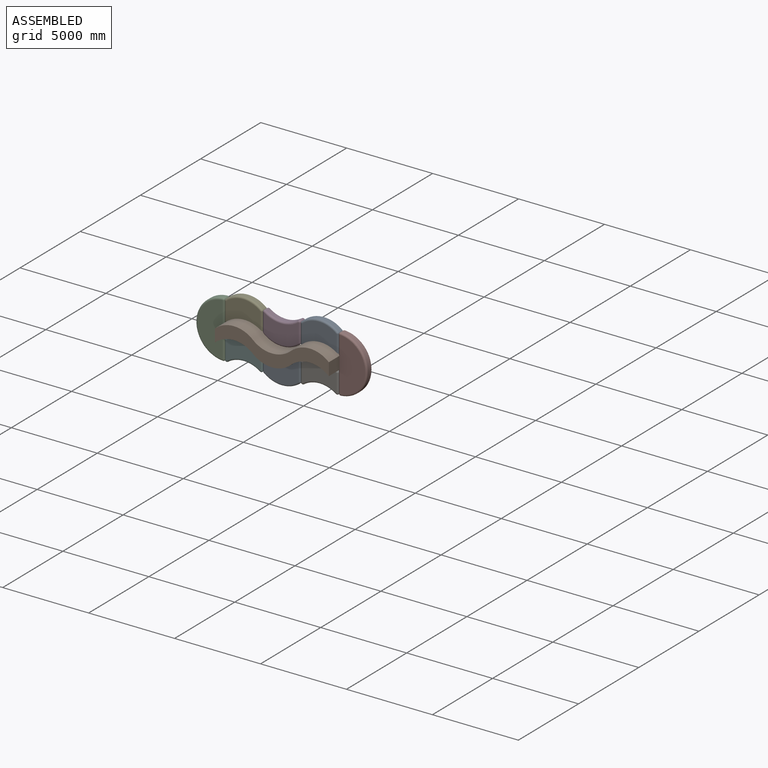
[diagram: assembled view]
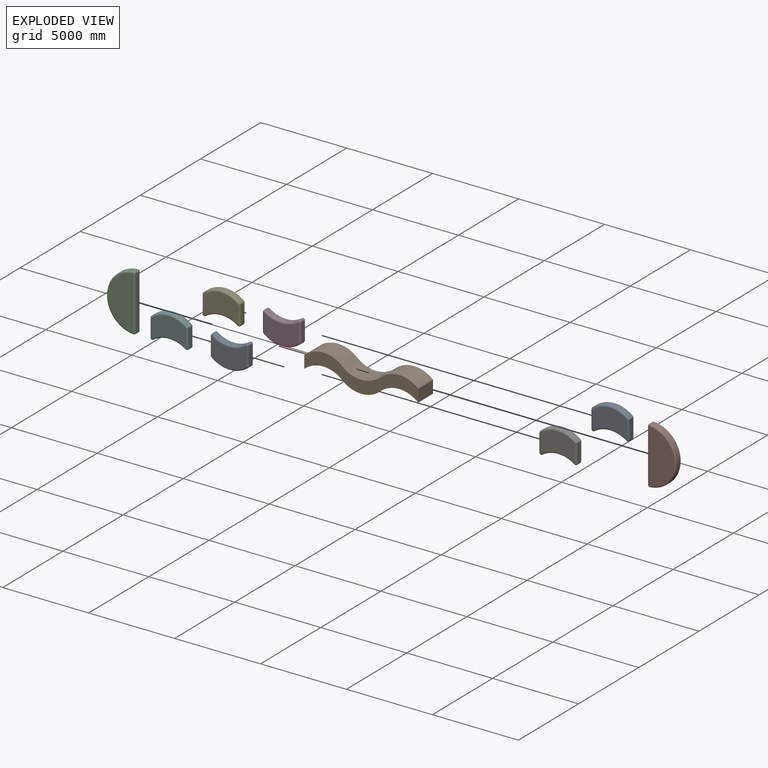
[diagram: exploded view]
GUIDED TOUR — MATED ASSEMBLY (Onshape document 57f68752e66cea10b9c33d71, AutoMate assembly 57f68752e66cea10b9c33d71_37ee06eb201e53cffd0e787d_c62291b0ad501cf054df715e_default)

This assembly has 9 components, labeled P0..P8 below (a component is one placed occurrence of a part; the same part can appear more than once), held together by 8 mates. A mate is a constraint between two components; its type names the relative motion it leaves free:
  FASTENED — locks the two components together rigidly (no relative motion).
Axis/direction vectors are unit vectors and 'through' points are millimeter coordinates, both in the assembly's world frame.

MATES
  1. FASTENED "Fastened 5": P4 <-> P3, direction (1.000, 0.000, 0.000) through (-3078.81, 1188.93, 929.05) mm
  2. FASTENED "Fastened 3": P3 <-> P8, direction (1.000, 0.000, 0.000) through (-869.01, 1188.93, 396.81) mm
  3. FASTENED "Fastened 2": P6 <-> P7, direction (1.000, 0.000, 0.000) through (1340.79, 1188.93, -1656.30) mm
  4. FASTENED "Fastened 8": P1 <-> P0, direction (0.000, 1.000, 0.000) through (-800.17, 1315.93, -381.51) mm
  5. FASTENED "Fastened 4": P0 <-> P6, direction (1.000, 0.000, 0.000) through (-869.01, 1188.93, -591.82) mm
  6. FASTENED "Fastened 1": P8 <-> P7, direction (1.000, 0.000, 0.000) through (1340.79, 1188.93, 1461.29) mm
  7. FASTENED "Fastened 6": P5 <-> P0, direction (1.000, 0.000, 0.000) through (-3078.81, 1188.93, -1124.06) mm
  8. FASTENED "Fastened 7": P2 <-> P4, direction (1.000, 0.000, 0.000) through (-5288.61, 1188.93, 1461.29) mm

ASSEMBLY ORDER
  1. P3 — the base component [order verified]
  2. P0 [order verified]
  3. P1 [order verified]
  4. P4 [order verified]
  5. P8 [order verified]
  6. P5 [order verified]
  7. P7 [order verified]
  8. P6 [order verified]
  9. P2 [order verified]
Order-tag legend:
  [order verified] — this step's position reverses a verified removal order: the component was checked to insert without passing through the ones already placed.

Of the 9 components, 7 carry the full construction recipe — the FeatureScript program that regenerates the part's solid from scratch; the rest are supplied as boundary geometry only.
Each toured component is shown spotlighted twice — in the assembled view, then in the exploded view, where a leader line traces a displaced component back to its assembled socket (saturated green if recipe-attached, orange if geometry-only; every other component desaturated gray) — followed by its recipe or geometry summary and the mates that hold it.
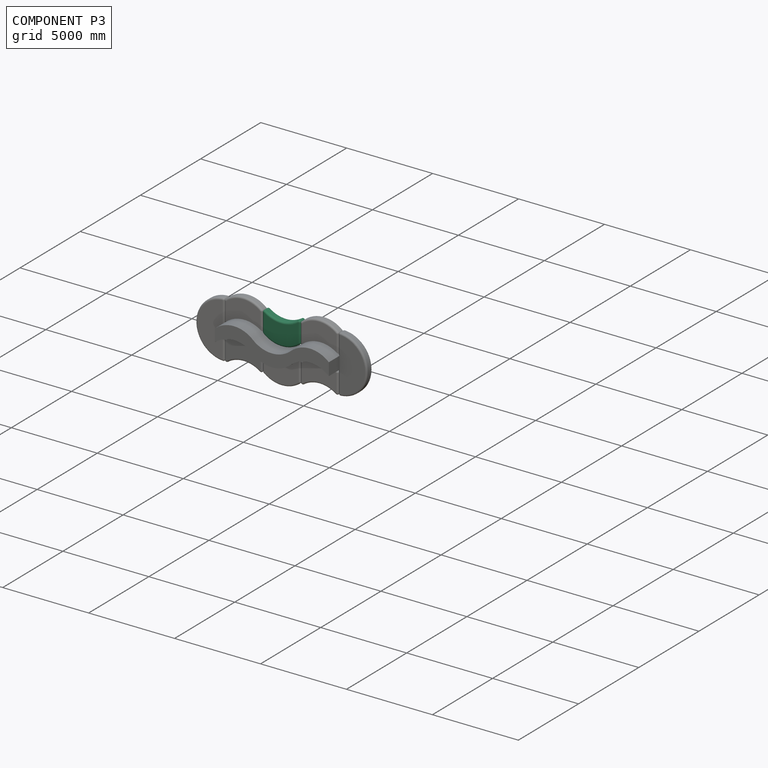
[diagram: component P3 — assembled]
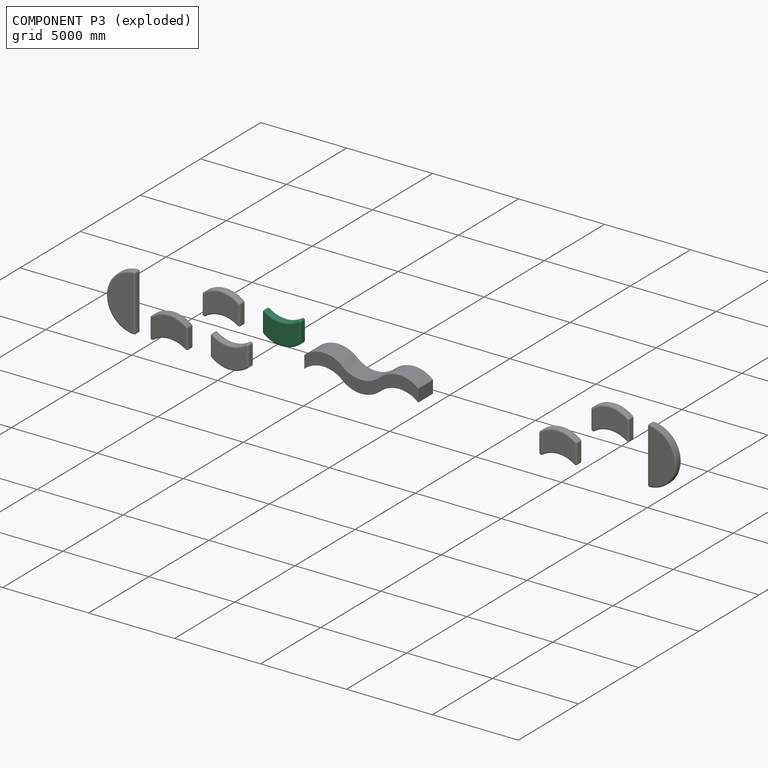
[diagram: component P3 — exploded]
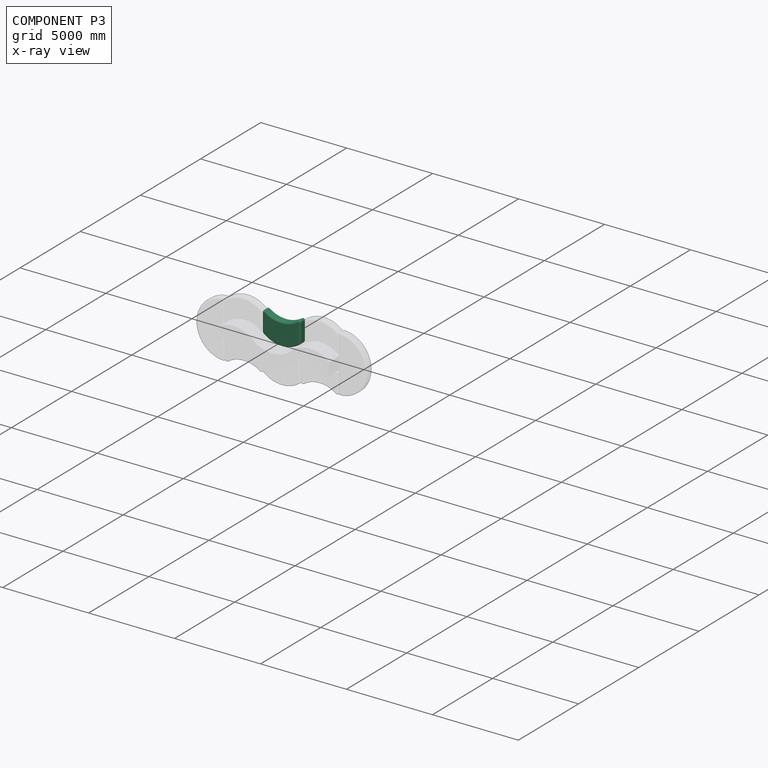
[diagram: component P3 — x-ray view]
COMPONENT P3 — same part as P0 (CADFS 00276042); its construction recipe is shown at P0.
Held by: FASTENED mate "Fastened 5" to P4; FASTENED mate "Fastened 3" to P8.
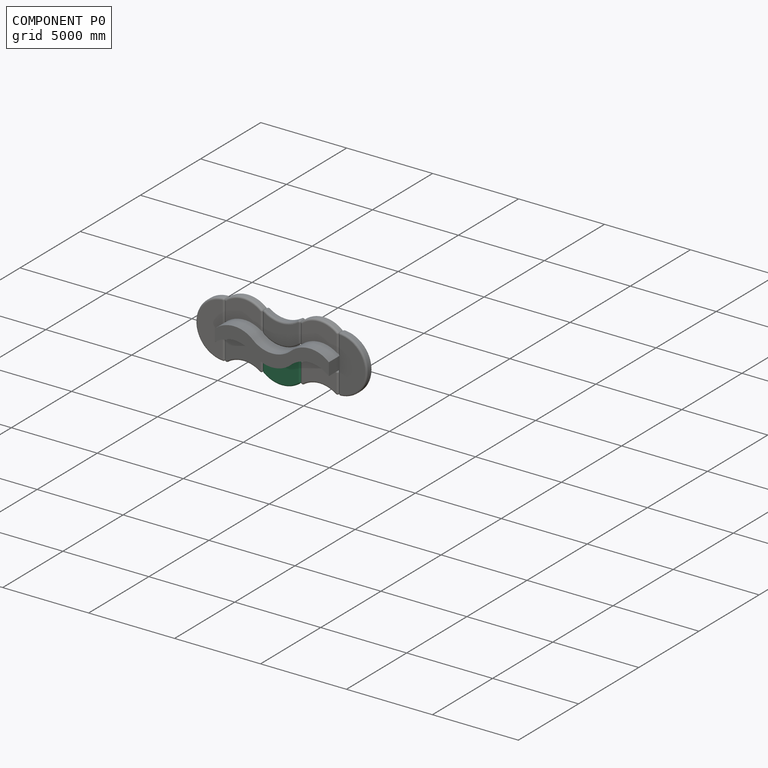
[diagram: component P0 — assembled]
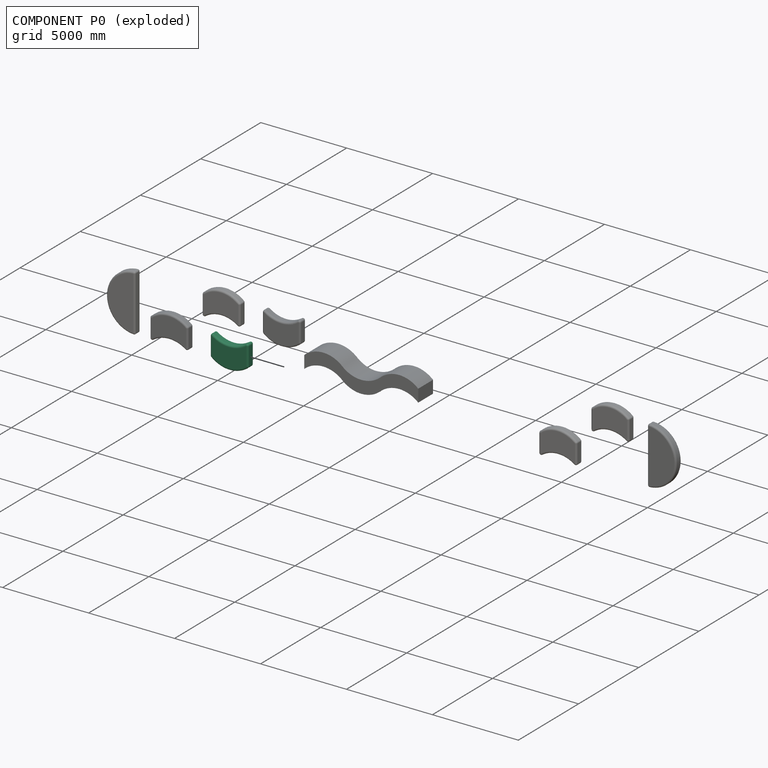
[diagram: component P0 — exploded]
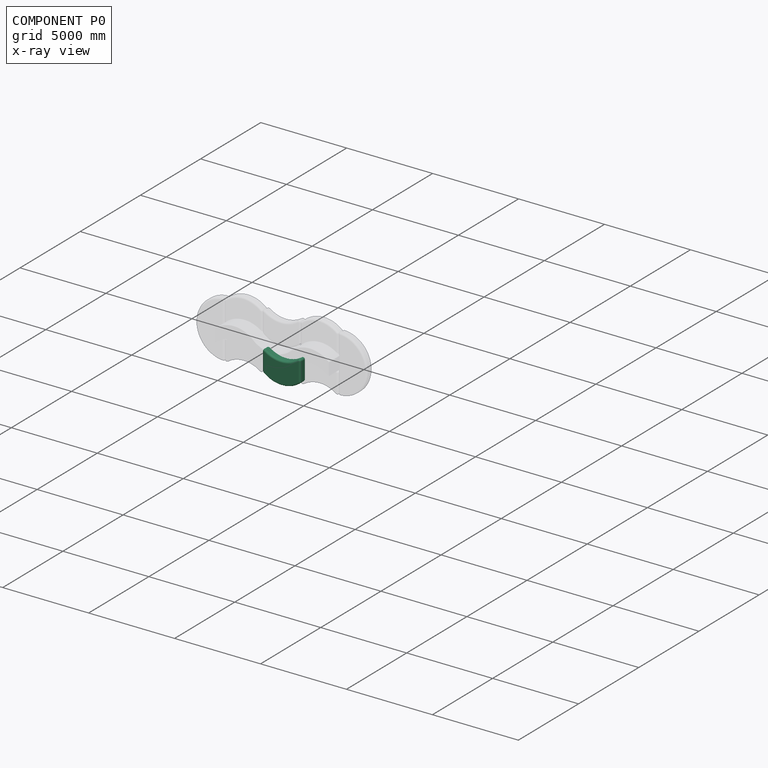
[diagram: component P0 — x-ray view]
COMPONENT P0 — recipe-attached (CADFS 00276042, mesh-verified: the recipe's output STEP matches this component's geometry to below the mesh-comparison resolution (tessellation chordal tolerance ~4.18 mm)).
Held by: FASTENED mate "Fastened 8" to P1; FASTENED mate "Fastened 4" to P6; FASTENED mate "Fastened 6" to P5.
Construction recipe (FeatureScript — the CAD program that rebuilds this solid; sketch coordinates are in the units given by the * unit suffixes, e.g. mm):

FeatureScript 1511;
import(path : "onshape/std/geometry.fs", version : "1511.0");
import(path : "onshape/std/common.fs", version : "1511.0");
const mm = millimeter;
const VERTEX = EntityType.VERTEX;
const EDGE = EntityType.EDGE;
const FACE = EntityType.FACE;
const BODY = EntityType.BODY;
function v(x, y){return vector(x, y);}
function OD(order){return orderDisambiguation(order);}
function OSD(set){return originalSetDisambiguation(set);}
function TD(topology){return topologyDisambiguation(topology);}
function TDD(query){return trueDependencyDisambiguation(query);}
function sQuery(a, b, c) {return sketchEntityQuery(a, b, c);}

annotation { "Feature Type Name" : "Feature", "Feature Type Description" : "" }
export const myFeature = defineFeature(function(context is Context, id is Id, definition is map)
    precondition{}
    {
        {
            var Q0;
            Q0=qCreatedBy(makeId("Front.planeOp"),FACE);
            var sketch = newSketch(context, id + "F0", { "sketchPlane" : qUnion([Q0])});
            skLineSegment(sketch, "E0", {"start": v(0, 0) * mm, "end": v(1104.9, 0) * mm});
            skLineSegment(sketch, "E1", {"start": v(0, 0) * mm, "end": v(-1104.9, 0) * mm});
            skLineSegment(sketch, "E2", {"start": v(-1104.9, 0) * mm, "end": v(-1104.9, 1320.8) * mm});
            skLineSegment(sketch, "E3", {"start": v(1104.9, 0) * mm, "end": v(1104.9, 1320.8) * mm});
            skArc(sketch, "E4", {"start": v(1104.9, 1320.8) * mm, "mid": v(0, 1745.02) * mm, "end": v(-1104.9, 1320.8) * mm});
            skArc(sketch, "E5", {"start": v(1104.9, 0) * mm, "mid": v(0, 424.22) * mm, "end": v(-1104.9, 0) * mm});
            skSolve(sketch);
        }
        {
            var Q0;
            Q0=makeQuery(id+"F0.imprint","IMPRINT",FACE,{"disambiguationData":[TD([[makeQuery(id+"F0.imprint","IMPRINT",EDGE,{"derivedFrom":sQuery(id+"F0.wireOp",EDGE,"E2")}),-1.0]])]});
            extrude(context, id + "F1", {"entities" : qUnion([Q0]), "depth" : 457.2 * mm});
        }
        {
            var Q0;
            Q0=makeQuery(id+"F1.opExtrude","CAP_FACE",FACE,{"disambiguationData":[OSD([sQuery(id+"F0.wireOp",EDGE,"E2"),sQuery(id+"F0.wireOp",EDGE,"E3"),sQuery(id+"F0.wireOp",EDGE,"E4"),sQuery(id+"F0.wireOp",EDGE,"E5")])],"isStart":true});
            var Q1;
            Q1=makeQuery(id+"F1.opExtrude","SWEPT_FACE",FACE,{"disambiguationData":[OSD([sQuery(id+"F0.wireOp",EDGE,"E2")])]});
            var Q2;
            Q2=makeQuery(id+"F1.opExtrude","CAP_EDGE",EDGE,{"disambiguationData":[OSD([sQuery(id+"F0.wireOp",EDGE,"E5")])],"isStart":false});
            var Q3;
            Q3=makeQuery(id+"F1.opExtrude","SWEPT_FACE",FACE,{"disambiguationData":[OSD([sQuery(id+"F0.wireOp",EDGE,"E3")])]});
            var Q4;
            Q4=makeQuery(id+"F1.opExtrude","CAP_FACE",FACE,{"disambiguationData":[OSD([sQuery(id+"F0.wireOp",EDGE,"E2"),sQuery(id+"F0.wireOp",EDGE,"E3"),sQuery(id+"F0.wireOp",EDGE,"E4"),sQuery(id+"F0.wireOp",EDGE,"E5")])],"isStart":false});
            var Q5;
            Q5=makeQuery(id+"F1.opExtrude","SWEPT_FACE",FACE,{"disambiguationData":[OSD([sQuery(id+"F0.wireOp",EDGE,"E4")])]});
            fillet(context, id + "F2", {"entities" : qUnion([Q0, Q1, Q2, Q3, Q4, Q5]), "radius" : 101.6 * mm, "tangentPropagation" : true, "allowEdgeOverflow" : false});
        }
    });
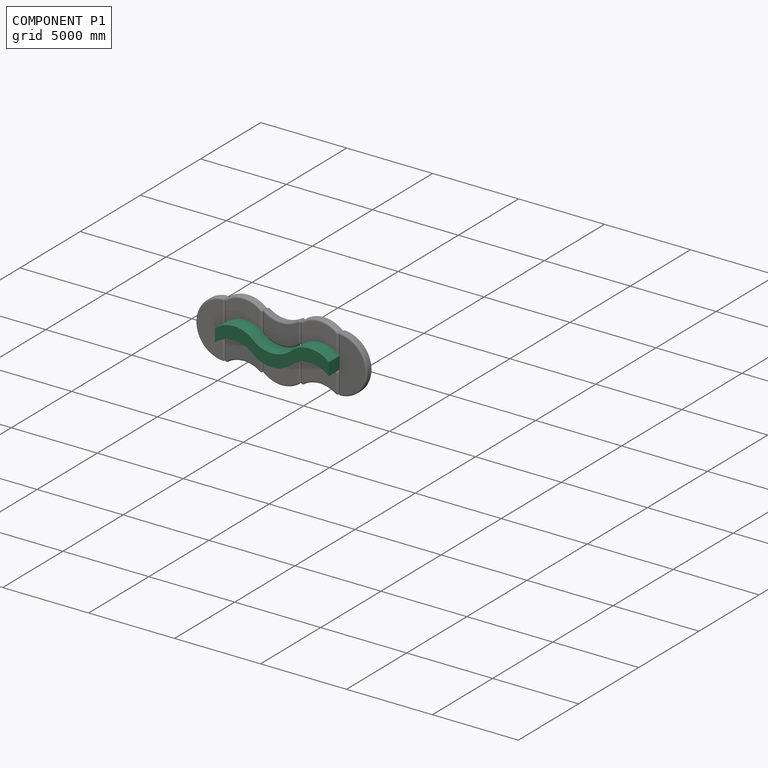
[diagram: component P1 — assembled]
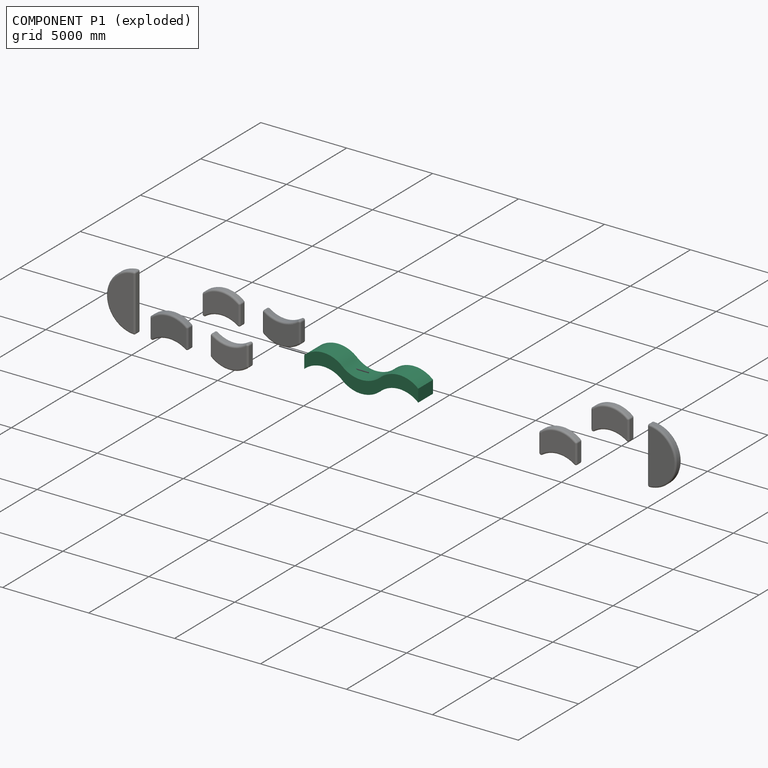
[diagram: component P1 — exploded]
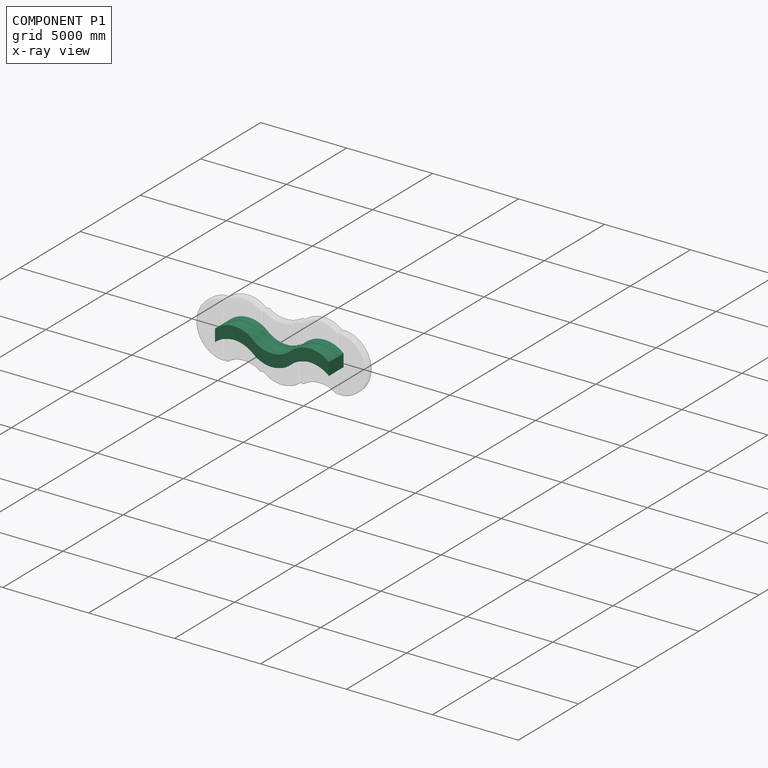
[diagram: component P1 — x-ray view]
COMPONENT P1 — recipe-attached (CADFS 00276043, mesh-verified: the recipe's output STEP matches this component's geometry to below the mesh-comparison resolution (tessellation chordal tolerance ~10.4 mm)).
Held by: FASTENED mate "Fastened 8" to P0.
Construction recipe (FeatureScript — the CAD program that rebuilds this solid; sketch coordinates are in the units given by the * unit suffixes, e.g. mm):

FeatureScript 1511;
import(path : "onshape/std/geometry.fs", version : "1511.0");
import(path : "onshape/std/common.fs", version : "1511.0");
const mm = millimeter;
const VERTEX = EntityType.VERTEX;
const EDGE = EntityType.EDGE;
const FACE = EntityType.FACE;
const BODY = EntityType.BODY;
function v(x, y){return vector(x, y);}
function OD(order){return orderDisambiguation(order);}
function OSD(set){return originalSetDisambiguation(set);}
function TD(topology){return topologyDisambiguation(topology);}
function TDD(query){return trueDependencyDisambiguation(query);}
function sQuery(a, b, c) {return sketchEntityQuery(a, b, c);}

annotation { "Feature Type Name" : "Feature", "Feature Type Description" : "" }
export const myFeature = defineFeature(function(context is Context, id is Id, definition is map)
    precondition{}
    {
        {
            var Q0;
            Q0=qCreatedBy(makeId("Front.planeOp"),FACE);
            var sketch = newSketch(context, id + "F0", { "sketchPlane" : qUnion([Q0])});
            skLineSegment(sketch, "E0", {"start": v(0, 0) * mm, "end": v(2209.8, 0) * mm});
            skLineSegment(sketch, "E1", {"start": v(2209.8, 0) * mm, "end": v(0, 0) * mm});
            skLineSegment(sketch, "E2", {"start": v(-2209.8, 0) * mm, "end": v(0, 0) * mm});
            skLineSegment(sketch, "E3", {"start": v(-2209.8, 0) * mm, "end": v(-4419.6, 0) * mm});
            skLineSegment(sketch, "E4", {"start": v(-4419.6, 0) * mm, "end": v(-4419.6, 732.3) * mm});
            skLineSegment(sketch, "E5", {"start": v(-2209.8, 0) * mm, "end": v(-2209.8, 732.3) * mm});
            skLineSegment(sketch, "E6", {"start": v(0, 0) * mm, "end": v(0, 732.3) * mm});
            skLineSegment(sketch, "E7", {"start": v(2209.8, 0) * mm, "end": v(2209.8, 732.3) * mm});
            skArc(sketch, "E8", {"start": v(-2209.8, 732.3) * mm, "mid": v(-3314.7, 1152.18) * mm, "end": v(-4419.6, 732.3) * mm});
            skArc(sketch, "E9", {"start": v(-2209.8, 0) * mm, "mid": v(-3314.7, 419.88) * mm, "end": v(-4419.6, 0) * mm});
            skArc(sketch, "E10", {"start": v(-2209.8, 0) * mm, "mid": v(-1104.9, -419.88) * mm, "end": v(0, 0) * mm});
            skArc(sketch, "E11", {"start": v(-2209.8, 732.3) * mm, "mid": v(-1104.9, 312.42) * mm, "end": v(0, 732.3) * mm});
            skArc(sketch, "E12", {"start": v(2209.8, 732.3) * mm, "mid": v(1104.9, 1156.52) * mm, "end": v(0, 732.3) * mm});
            skArc(sketch, "E13", {"start": v(2209.8, 0) * mm, "mid": v(1104.9, 419.88) * mm, "end": v(0, 0) * mm});
            skSolve(sketch);
        }
        {
            var Q0;
            Q0=makeQuery(id+"F0.imprint","IMPRINT",FACE,{"disambiguationData":[TD([[makeQuery(id+"F0.imprint","IMPRINT",EDGE,{"derivedFrom":sQuery(id+"F0.wireOp",EDGE,"E4")}),-1.0]])]});
            var Q1;
            Q1=makeQuery(id+"F0.imprint","IMPRINT",FACE,{"disambiguationData":[TD([[makeQuery(id+"F0.imprint","IMPRINT",EDGE,{"derivedFrom":sQuery(id+"F0.wireOp",EDGE,"E2")}),1.0]])]});
            var Q2;
            Q2=makeQuery(id+"F0.imprint","IMPRINT",FACE,{"disambiguationData":[TD([[makeQuery(id+"F0.imprint","IMPRINT",EDGE,{"derivedFrom":sQuery(id+"F0.wireOp",EDGE,"E2")}),-1.0]])]});
            var Q3;
            Q3=makeQuery(id+"F0.imprint","IMPRINT",FACE,{"disambiguationData":[TD([[makeQuery(id+"F0.imprint","IMPRINT",EDGE,{"derivedFrom":sQuery(id+"F0.wireOp",EDGE,"E6")}),-1.0]])]});
            extrude(context, id + "F1", {"entities" : qUnion([Q0, Q1, Q2, Q3]), "depth" : 1231.9 * mm});
        }
    });
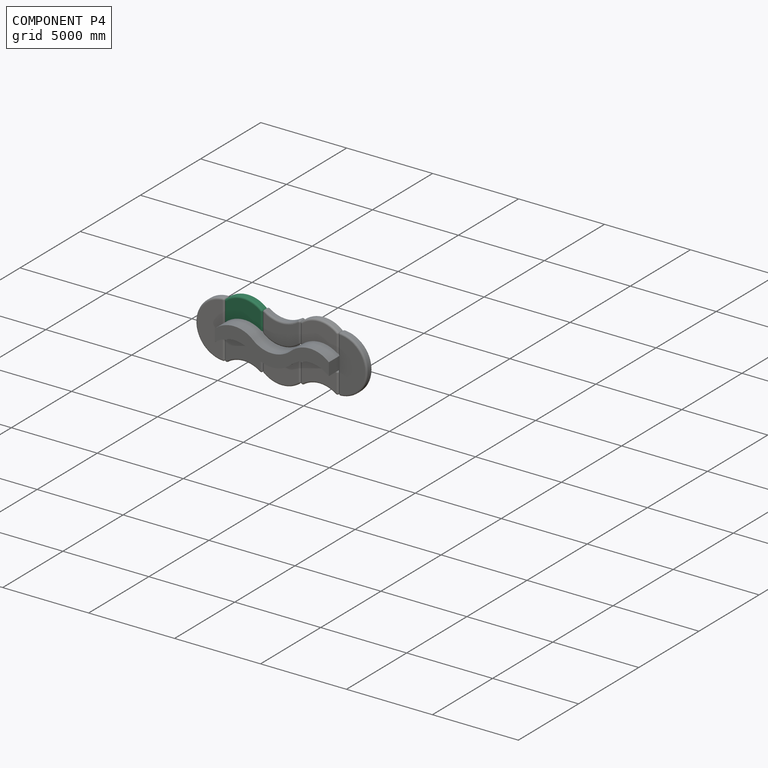
[diagram: component P4 — assembled]
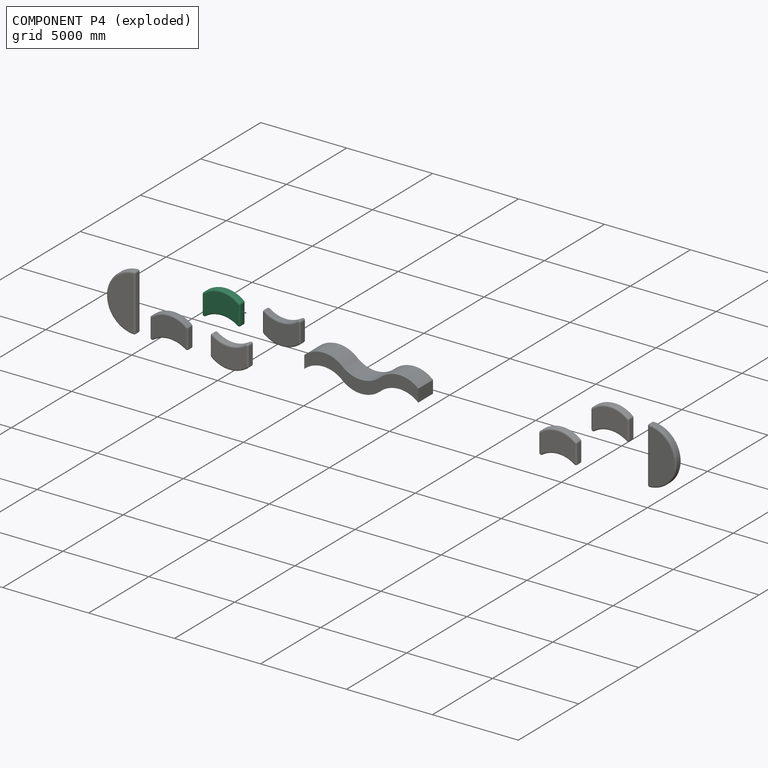
[diagram: component P4 — exploded]
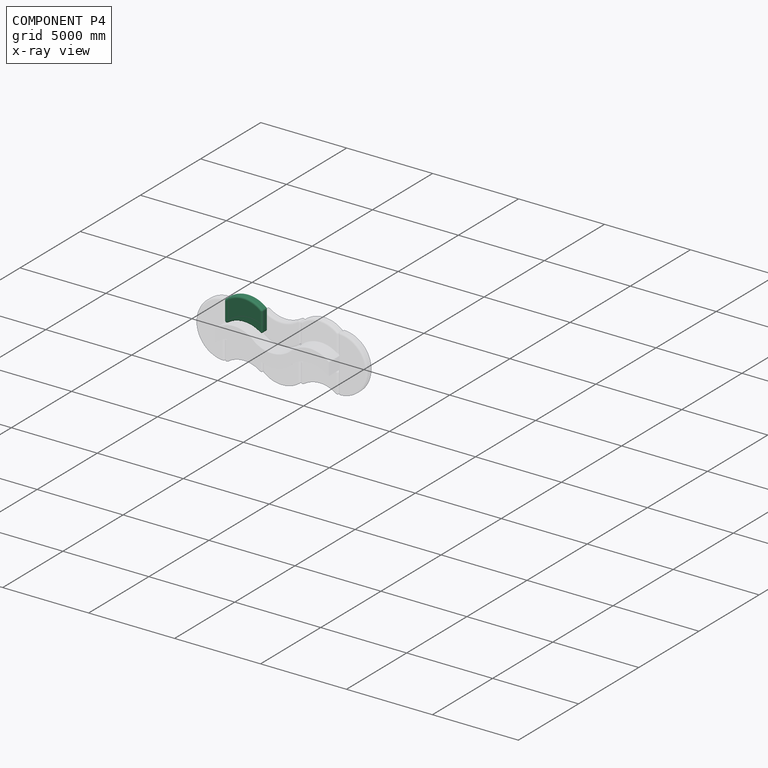
[diagram: component P4 — x-ray view]
COMPONENT P4 — same part as P0 (CADFS 00276042); its construction recipe is shown at P0.
Held by: FASTENED mate "Fastened 5" to P3; FASTENED mate "Fastened 7" to P2.
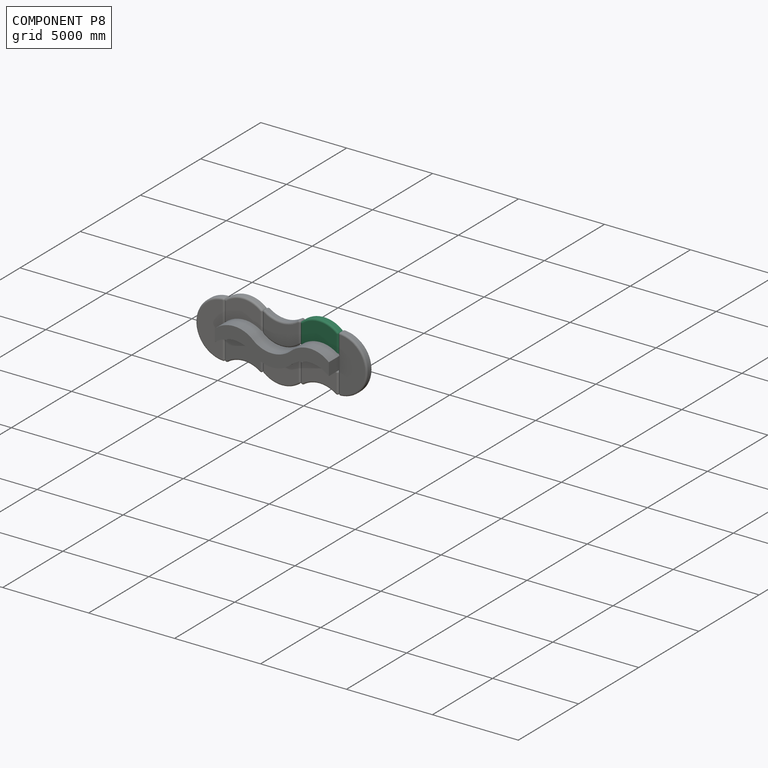
[diagram: component P8 — assembled]
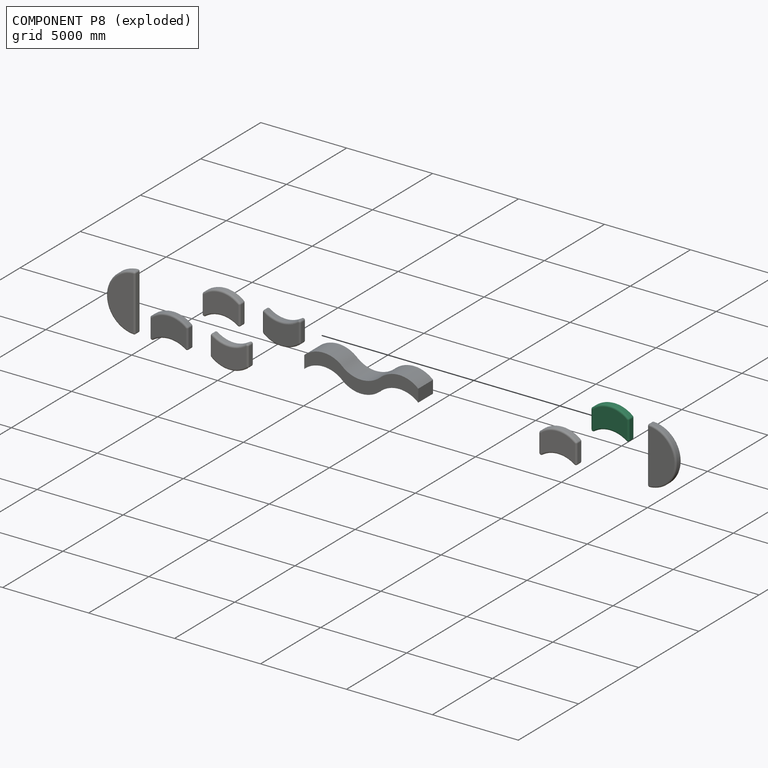
[diagram: component P8 — exploded]
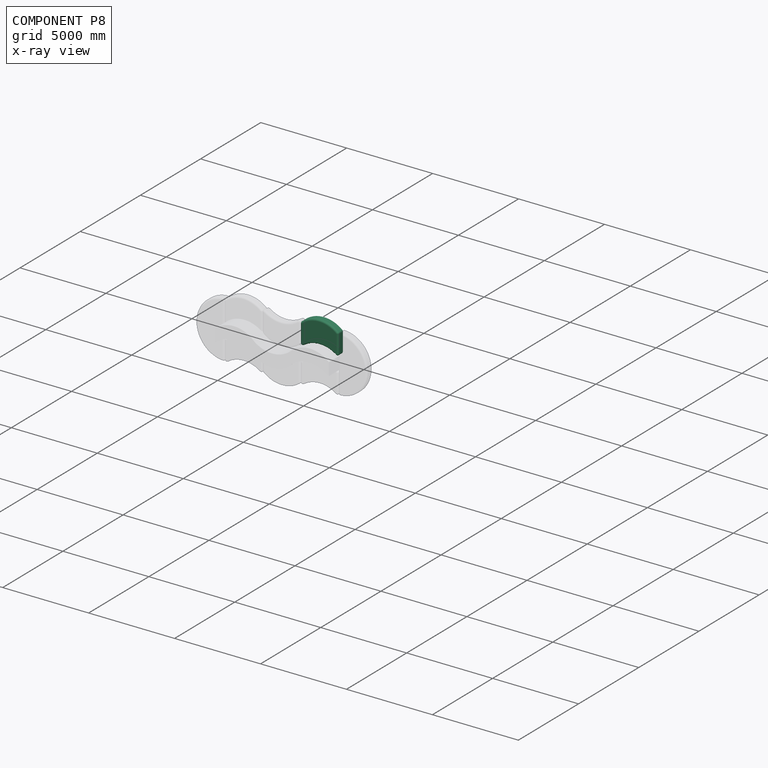
[diagram: component P8 — x-ray view]
COMPONENT P8 — same part as P0 (CADFS 00276042); its construction recipe is shown at P0.
Held by: FASTENED mate "Fastened 3" to P3; FASTENED mate "Fastened 1" to P7.
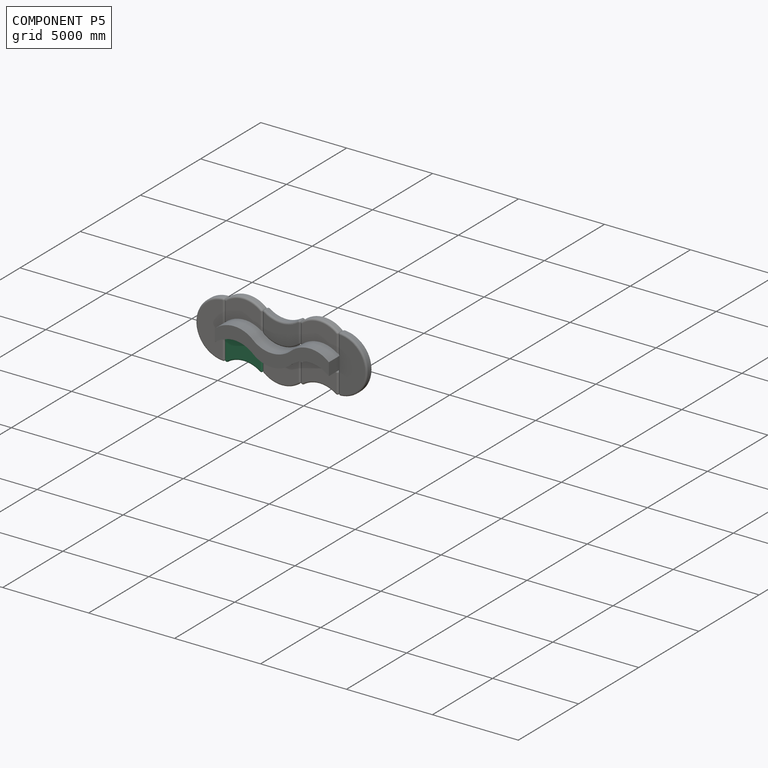
[diagram: component P5 — assembled]
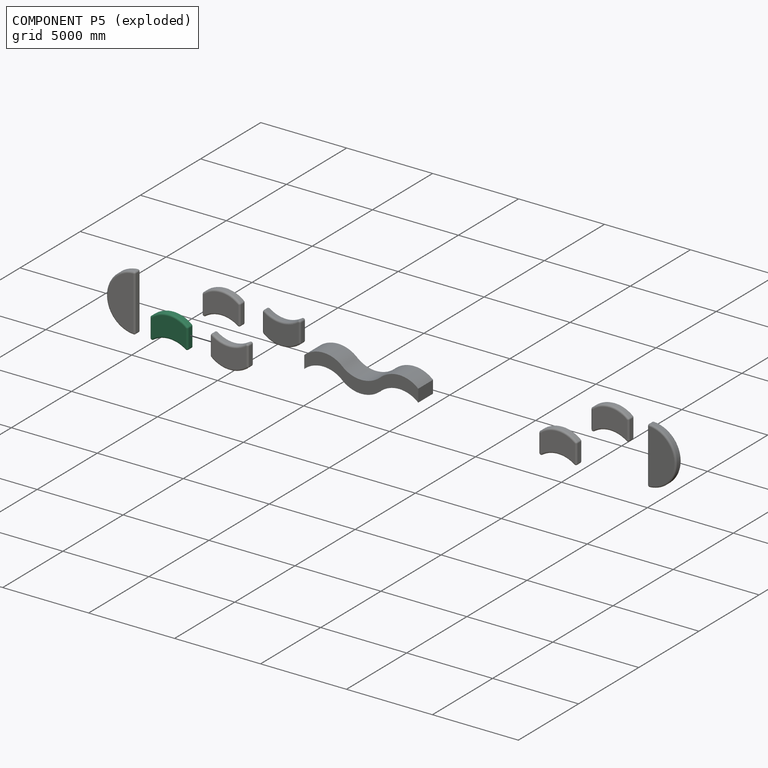
[diagram: component P5 — exploded]
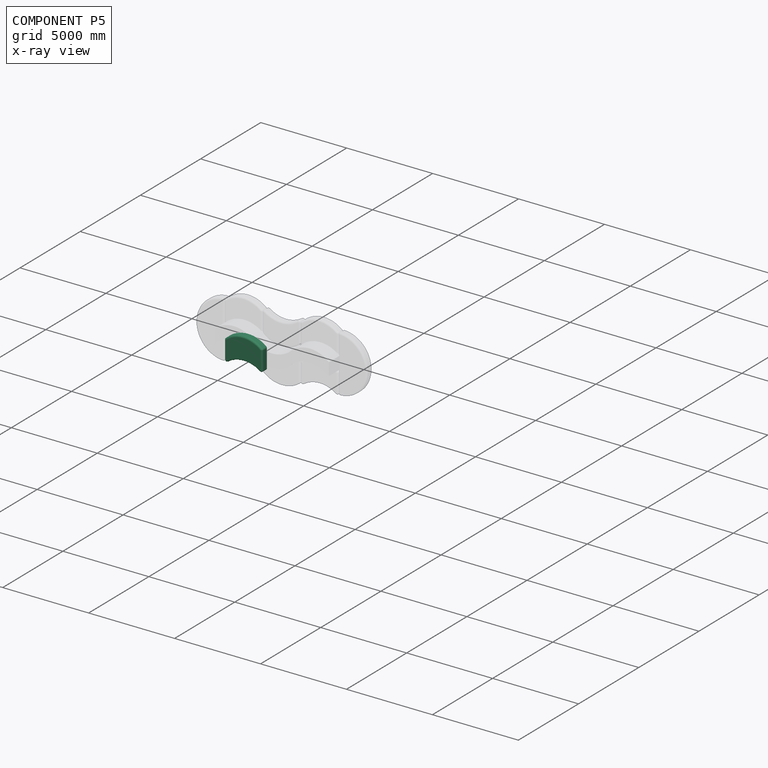
[diagram: component P5 — x-ray view]
COMPONENT P5 — same part as P0 (CADFS 00276042); its construction recipe is shown at P0.
Held by: FASTENED mate "Fastened 6" to P0.
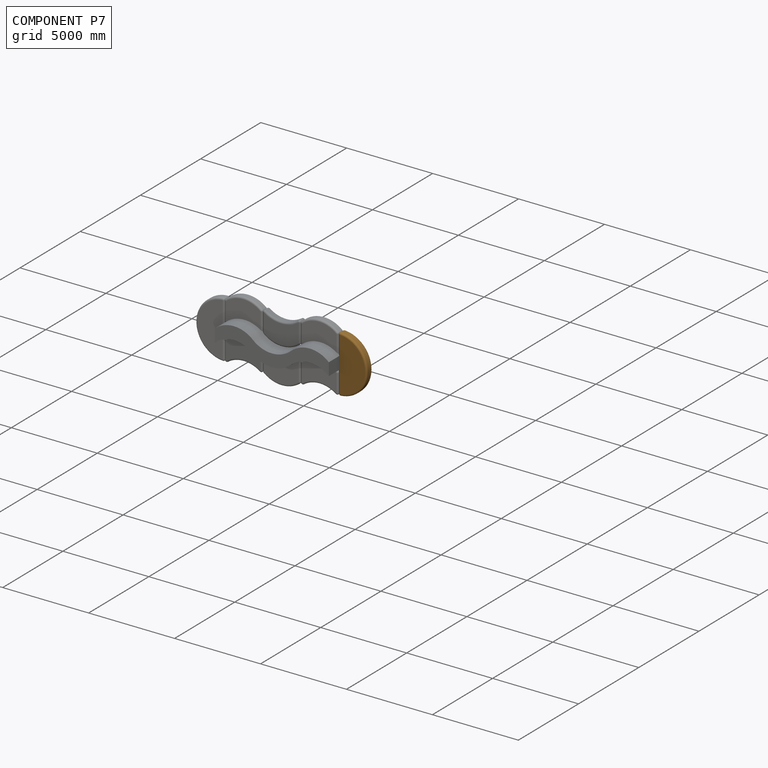
[diagram: component P7 — assembled]
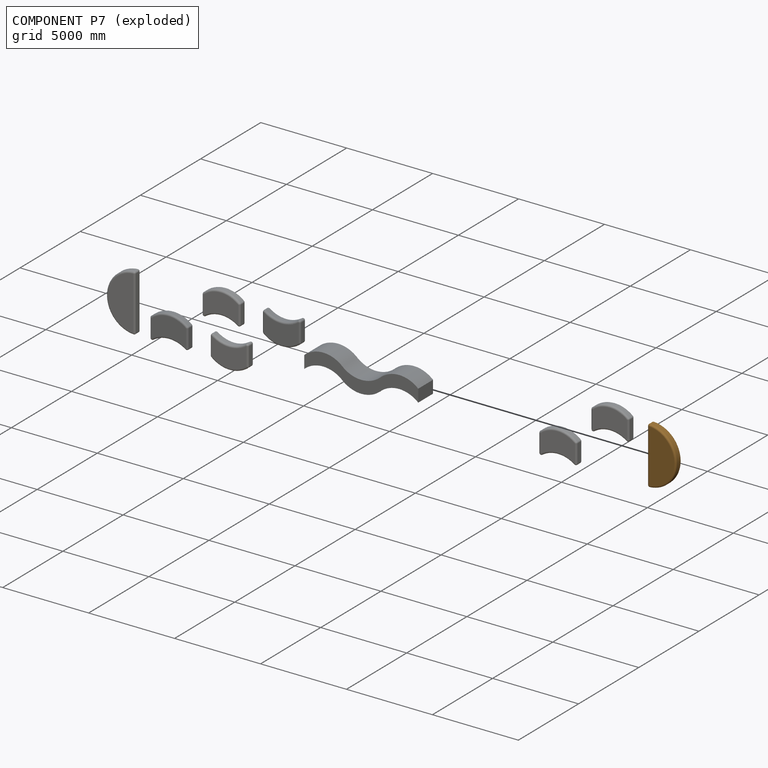
[diagram: component P7 — exploded]
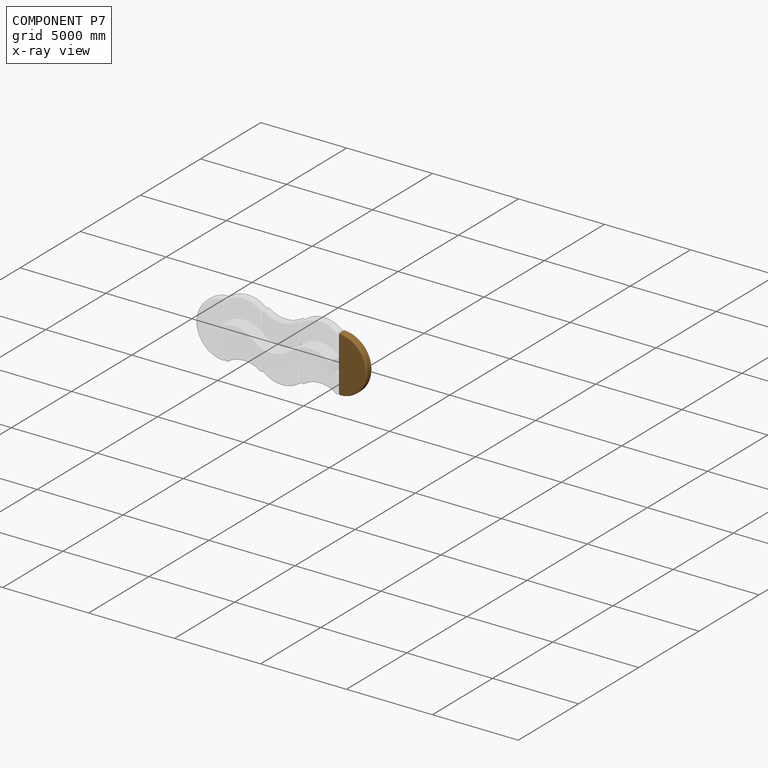
[diagram: component P7 — x-ray view]
COMPONENT P7 — geometry summary (no construction recipe available for this part):
  bounding box: 3593.9 x 1800.8 x 457.2 mm
  B-rep topology: 1 solid, 14 faces, 60 edges
  volume: 1948728983 mm^3 (66% of its bounding box)
  symmetry: 2-fold rotationally symmetric about the x axis; mirror-symmetric across its y mid-plane, z mid-plane
Held by: FASTENED mate "Fastened 2" to P6; FASTENED mate "Fastened 1" to P8.
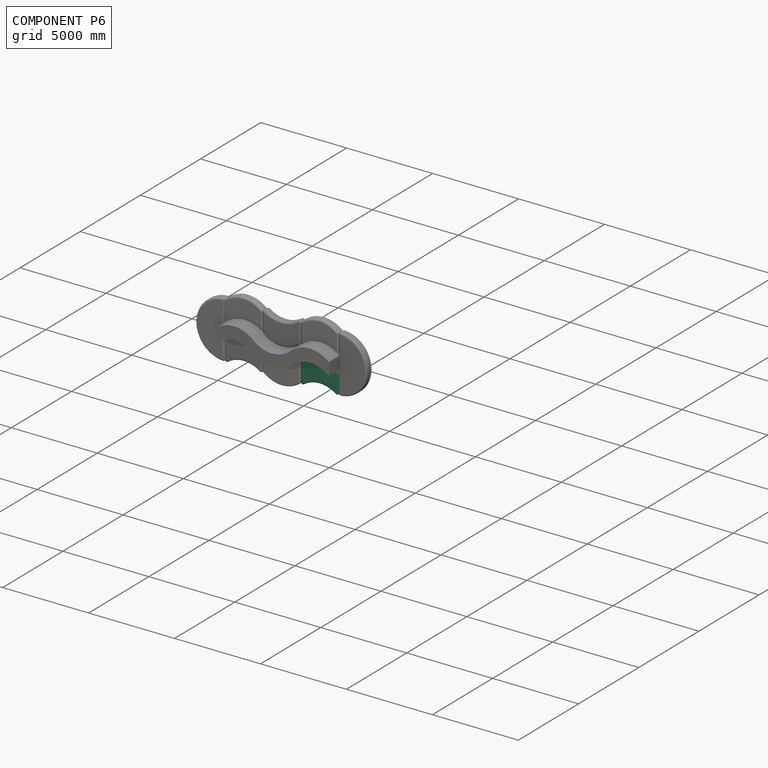
[diagram: component P6 — assembled]
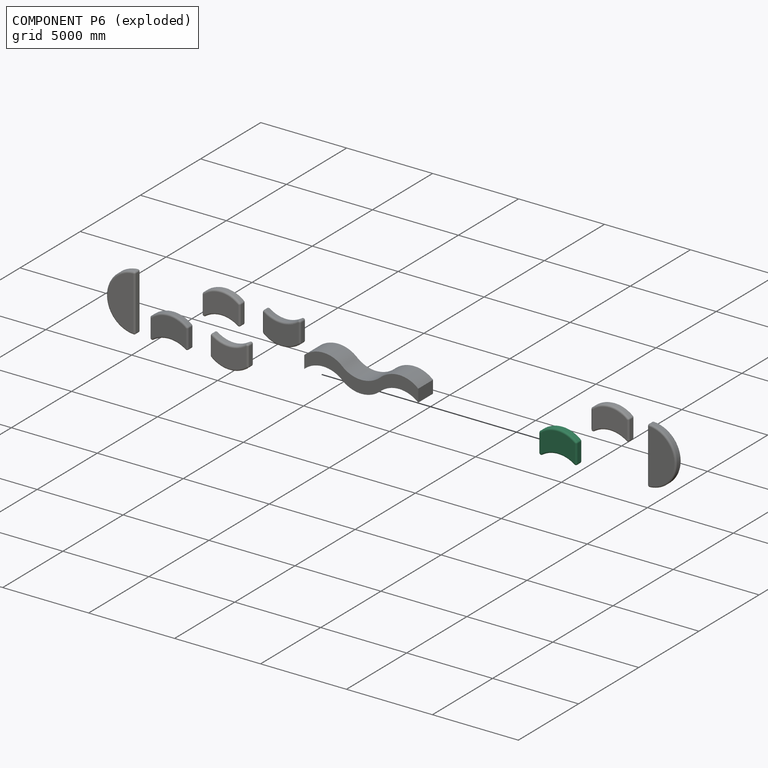
[diagram: component P6 — exploded]
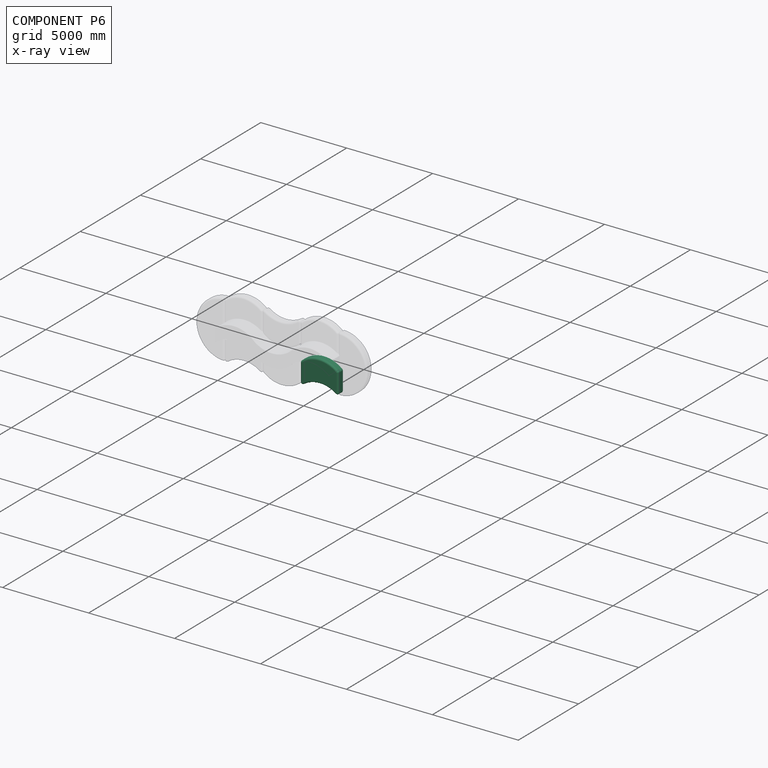
[diagram: component P6 — x-ray view]
COMPONENT P6 — same part as P0 (CADFS 00276042); its construction recipe is shown at P0.
Held by: FASTENED mate "Fastened 2" to P7; FASTENED mate "Fastened 4" to P0.
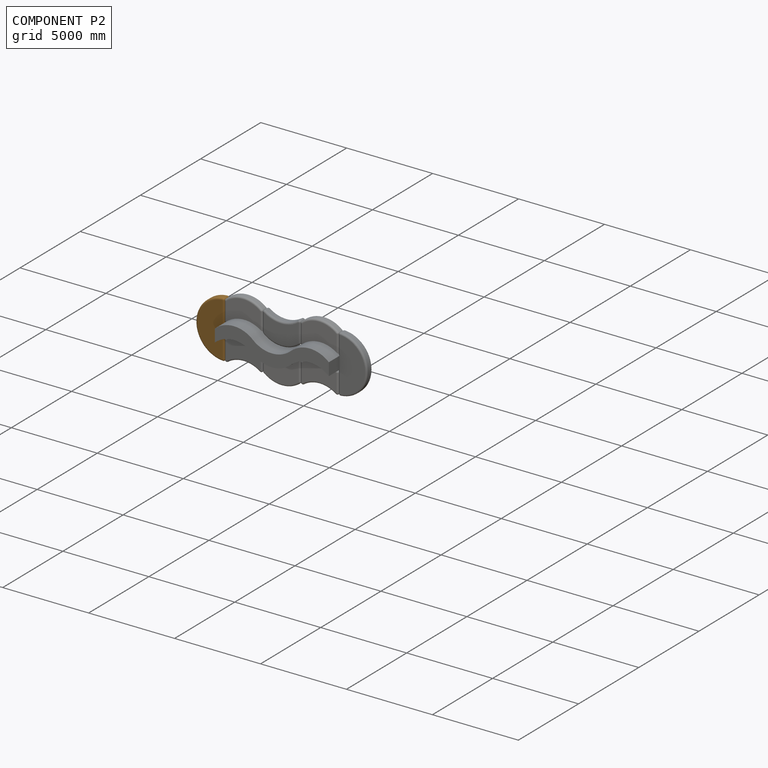
[diagram: component P2 — assembled]
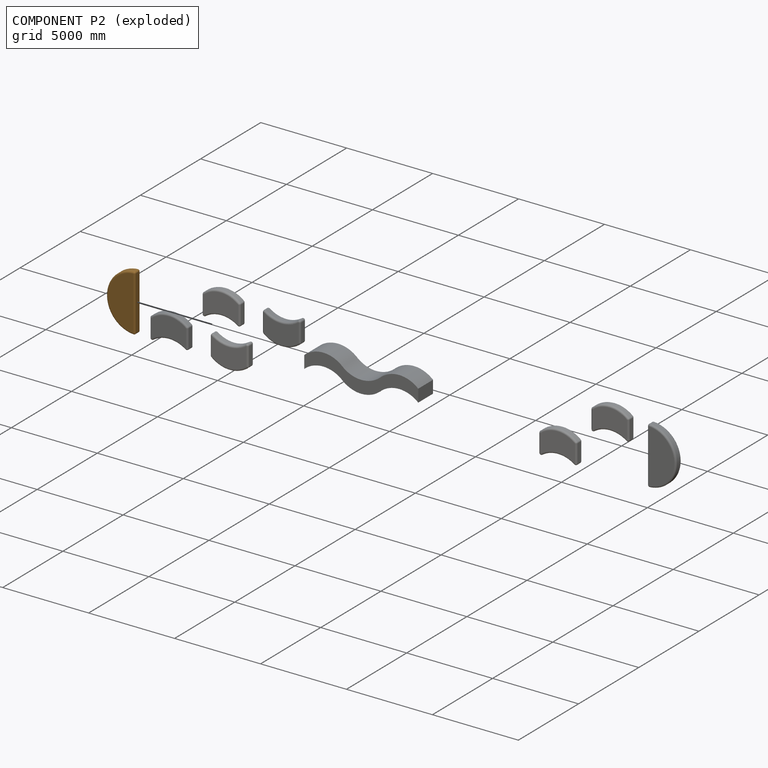
[diagram: component P2 — exploded]
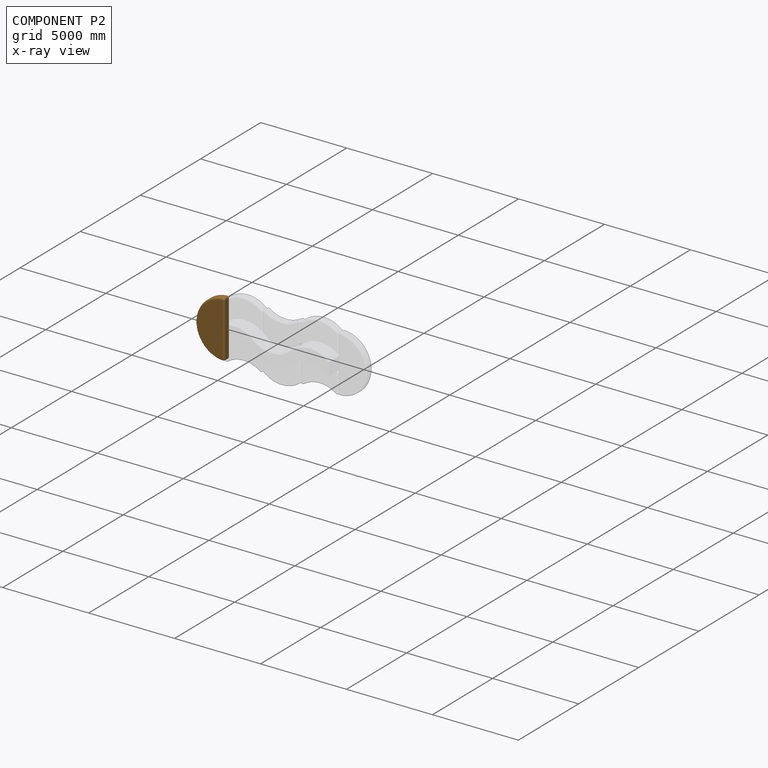
[diagram: component P2 — x-ray view]
COMPONENT P2 — geometry summary (no construction recipe available for this part):
  bounding box: 3593.9 x 1800.8 x 457.2 mm
  B-rep topology: 1 solid, 14 faces, 60 edges
  volume: 1948728983 mm^3 (66% of its bounding box)
  symmetry: 2-fold rotationally symmetric about the x axis; mirror-symmetric across its y mid-plane, z mid-plane
Held by: FASTENED mate "Fastened 7" to P4.
PROVENANCE & LICENSES
Assembly (occurrences, transforms, mates, per-part STEP geometry): AutoMate dataset, Zenodo record 7776208, CC0.
Construction recipes: CADFS (HuggingFace VladPyatov/CADFS, CC-BY-4.0, layered over the ABC dataset), FeatureScript reconstruction programs keyed by ABC model id.
Join: ABC meta listings map ABC model id -> Onshape documentId; within a shared document, parts are matched by geometric signature (bounding-box dims + volume at 0.1% relative tolerance, exact B-rep face/solid counts).
Verification: 7 of this assembly's 9 components carry a recipe attachment, and every attachment is mesh-verified: the CADFS STEP and the AutoMate member STEP were compared as meshes in their shared local frame (symmetric sampled-point-to-mesh distance); worst across the 7 attachments: below the mesh-comparison resolution (tessellation chordal tolerance ~10.4 mm) on a 6925 mm part.
Renders: orthographic iso camera (az 35 / el 25); the floor grid conveys scale (grid pitch printed in each image; no ruler). In the exploded view each component is displaced by its stored offset vector: the offsets alone carry the explosion direction (mate normal/axis signs are not orientation cues and do not encode it), and separation distances are assigned per mate-chain, not proportionally to assembly-order depth.
